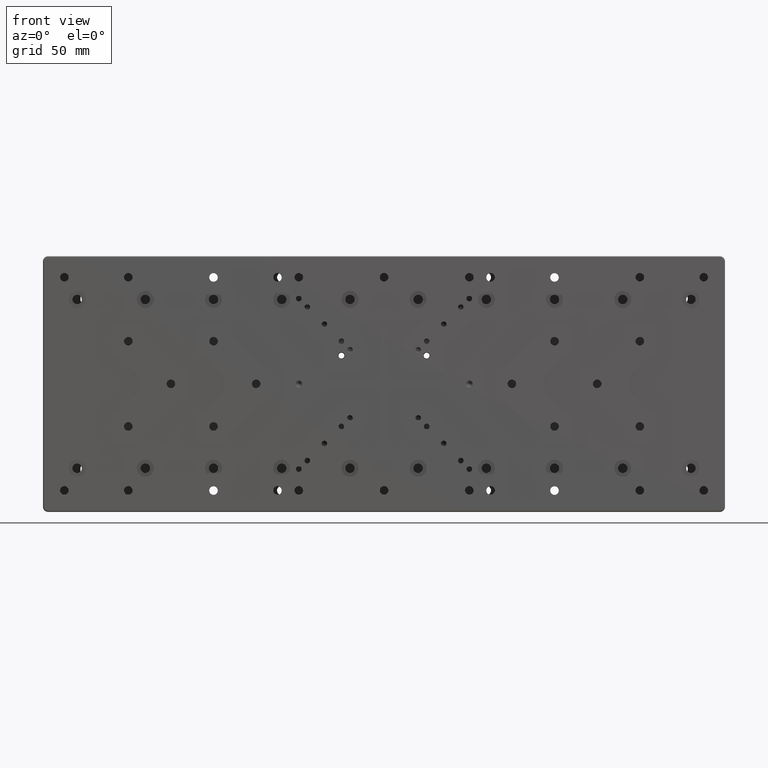
[diagram: clean part render]
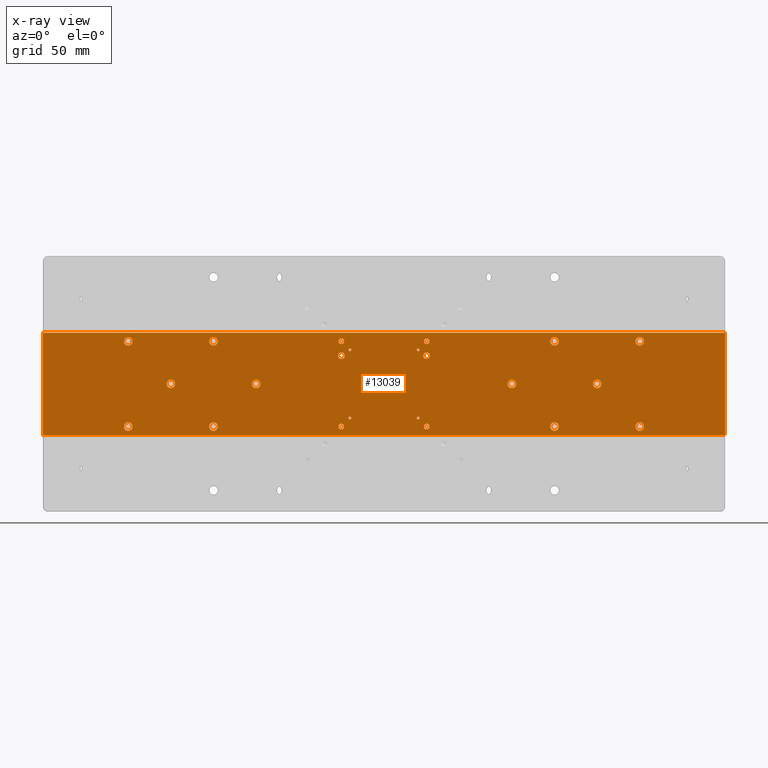
[diagram: x-ray — body ghosted, one internal face saturated and labeled with its STEP entity id]
A machine part, front view, then the same camera in x-ray: the body is ghosted and one INTERNAL B-rep face — a face not visible from any outside direction — is saturated and labeled: STEP entity #13039.
In plain terms, the highlighted planar face has unit normal (0, 1, 0).
Its self-contained STEP definition (entity closure, byte-faithful):
#221 = ORIENTED_EDGE ( 'NONE', *, *, #20202, .T. ) ;
#246 = ORIENTED_EDGE ( 'NONE', *, *, #7959, .T. ) ;
#374 = ORIENTED_EDGE ( 'NONE', *, *, #23454, .T. ) ;
#480 = EDGE_LOOP ( 'NONE', ( #21414 ) ) ;
#689 = DIRECTION ( 'NONE',  ( 0.000000000000000000, 0.000000000000000000, -1.000000000000000000 ) ) ;
#706 = CIRCLE ( 'NONE', #10416, 2.500000000000000000 ) ;
#783 = DIRECTION ( 'NONE',  ( 0.000000000000000000, 0.000000000000000000, -1.000000000000000000 ) ) ;
#962 = VECTOR ( 'NONE', #17445, 1000.000000000000000 ) ;
#1210 = AXIS2_PLACEMENT_3D ( 'NONE', #11706, #36356, #8868 ) ;
#1351 = AXIS2_PLACEMENT_3D ( 'NONE', #12718, #34724, #34539 ) ;
#1363 = DIRECTION ( 'NONE',  ( 0.000000000000000000, -1.000000000000000000, 0.000000000000000000 ) ) ;
#1451 = VERTEX_POINT ( 'NONE', #22871 ) ;
#1614 = AXIS2_PLACEMENT_3D ( 'NONE', #9863, #16319, #28648 ) ;
#1620 = EDGE_LOOP ( 'NONE', ( #374 ) ) ;
#1735 = CARTESIAN_POINT ( 'NONE',  ( -200.0000000000000000, -11.50000000000000000, 30.50000000000000000 ) ) ;
#1750 = DIRECTION ( 'NONE',  ( 0.000000000000000000, 0.000000000000000000, -1.000000000000000000 ) ) ;
#1841 = EDGE_LOOP ( 'NONE', ( #3533 ) ) ;
#2047 = DIRECTION ( 'NONE',  ( 0.000000000000000000, -0.000000000000000000, 1.000000000000000000 ) ) ;
#2216 = CARTESIAN_POINT ( 'NONE',  ( 25.00000000000000000, -11.50000000000000000, 23.35000000000000142 ) ) ;
#2603 = VERTEX_POINT ( 'NONE', #14944 ) ;
#2859 = ORIENTED_EDGE ( 'NONE', *, *, #9440, .F. ) ;
#2883 = CARTESIAN_POINT ( 'NONE',  ( 20.00000000000000000, -11.50000000000134825, -20.00000000000000000 ) ) ;
#2916 = ORIENTED_EDGE ( 'NONE', *, *, #18119, .T. ) ;
#2949 = ORIENTED_EDGE ( 'NONE', *, *, #26946, .T. ) ;
#3072 = DIRECTION ( 'NONE',  ( -0.000000000000000000, -1.000000000000000000, -0.000000000000000000 ) ) ;
#3113 = ORIENTED_EDGE ( 'NONE', *, *, #31116, .T. ) ;
#3127 = CARTESIAN_POINT ( 'NONE',  ( 199.5000000000000000, -11.50000000000000355, 30.00000000000000000 ) ) ;
#3358 = AXIS2_PLACEMENT_3D ( 'NONE', #35599, #23058, #35388 ) ;
#3468 = CARTESIAN_POINT ( 'NONE',  ( -200.0000000000000000, -11.50000000000000000, 30.00000000000000000 ) ) ;
#3510 = DIRECTION ( 'NONE',  ( 0.000000000000000000, -1.000000000000000000, 0.000000000000000000 ) ) ;
#3533 = ORIENTED_EDGE ( 'NONE', *, *, #25892, .T. ) ;
#3650 = VERTEX_POINT ( 'NONE', #34555 ) ;
#3839 = ORIENTED_EDGE ( 'NONE', *, *, #39452, .F. ) ;
#3885 = VERTEX_POINT ( 'NONE', #24901 ) ;
#4048 = VERTEX_POINT ( 'NONE', #34945 ) ;
#4194 = EDGE_CURVE ( 'NONE', #27199, #27199, #16015, .T. ) ;
#4478 = EDGE_CURVE ( 'NONE', #18089, #18089, #30893, .T. ) ;
#4690 = FACE_BOUND ( 'NONE', #11508, .T. ) ;
#4787 = DIRECTION ( 'NONE',  ( 0.000000000000000000, 0.000000000000000000, -1.000000000000000000 ) ) ;
#5082 = FACE_BOUND ( 'NONE', #37410, .T. ) ;
#5185 = DIRECTION ( 'NONE',  ( 0.000000000000000000, -1.000000000000000000, 0.000000000000000000 ) ) ;
#5337 = AXIS2_PLACEMENT_3D ( 'NONE', #34238, #21316, #689 ) ;
#5435 = EDGE_CURVE ( 'NONE', #12823, #12823, #14185, .T. ) ;
#5461 = VERTEX_POINT ( 'NONE', #2216 ) ;
#5499 = FACE_BOUND ( 'NONE', #480, .T. ) ;
#6018 = EDGE_LOOP ( 'NONE', ( #26358 ) ) ;
#6335 = CARTESIAN_POINT ( 'NONE',  ( -25.00000000000000000, -11.50000000000000000, -25.00000000000000000 ) ) ;
#6380 = EDGE_CURVE ( 'NONE', #22808, #13388, #13802, .T. ) ;
#6710 = LINE ( 'NONE', #3468, #19101 ) ;
#7378 = DIRECTION ( 'NONE',  ( 0.000000000000000000, 0.000000000000000000, -1.000000000000000000 ) ) ;
#7438 = DIRECTION ( 'NONE',  ( 0.000000000000000000, -1.000000000000000000, 0.000000000000000000 ) ) ;
#7600 = AXIS2_PLACEMENT_3D ( 'NONE', #23343, #16139, #783 ) ;
#7887 = VERTEX_POINT ( 'NONE', #13948 ) ;
#7894 = AXIS2_PLACEMENT_3D ( 'NONE', #37676, #25742, #7378 ) ;
#7959 = EDGE_CURVE ( 'NONE', #38055, #38055, #19496, .T. ) ;
#8053 = EDGE_CURVE ( 'NONE', #28790, #28790, #29845, .T. ) ;
#8126 = EDGE_LOOP ( 'NONE', ( #20110 ) ) ;
#8127 = FACE_BOUND ( 'NONE', #33000, .T. ) ;
#8539 = VERTEX_POINT ( 'NONE', #20848 ) ;
#8868 = DIRECTION ( 'NONE',  ( 0.000000000000000000, 0.000000000000000000, -1.000000000000000000 ) ) ;
#8903 = CIRCLE ( 'NONE', #7600, 2.499999999999998668 ) ;
#9317 = CARTESIAN_POINT ( 'NONE',  ( -20.00000000000000000, -11.49999999994367705, 19.18213974120817511 ) ) ;
#9440 = EDGE_CURVE ( 'NONE', #36388, #27113, #38878, .T. ) ;
#9705 = CARTESIAN_POINT ( 'NONE',  ( -100.0000000000000000, -11.50000000000000000, -27.50000000000000000 ) ) ;
#9711 = CARTESIAN_POINT ( 'NONE',  ( -75.00000000000000000, -11.50000000000000000, -2.500000000000000000 ) ) ;
#9733 = CARTESIAN_POINT ( 'NONE',  ( 199.5000000000000000, -11.50000000000000000, -30.00000000000000000 ) ) ;
#9739 = CARTESIAN_POINT ( 'NONE',  ( 200.0000000000000000, -11.50000000000000178, 30.50000000000000000 ) ) ;
#9845 = CIRCLE ( 'NONE', #22756, 2.499999999999998668 ) ;
#9863 = CARTESIAN_POINT ( 'NONE',  ( 20.00000000000000000, -11.50000000000134825, 20.00000000000000000 ) ) ;
#9954 = EDGE_LOOP ( 'NONE', ( #31409 ) ) ;
#10065 = VERTEX_POINT ( 'NONE', #15931 ) ;
#10208 = EDGE_CURVE ( 'NONE', #23708, #23708, #28626, .T. ) ;
#10247 = AXIS2_PLACEMENT_3D ( 'NONE', #20627, #27107, #39416 ) ;
#10416 = AXIS2_PLACEMENT_3D ( 'NONE', #23161, #7438, #1750 ) ;
#10518 = AXIS2_PLACEMENT_3D ( 'NONE', #32936, #11333, #36555 ) ;
#10533 = CARTESIAN_POINT ( 'NONE',  ( -25.00000000000000000, -11.50000000000000000, 16.57000000000000028 ) ) ;
#10570 = AXIS2_PLACEMENT_3D ( 'NONE', #20724, #5185, #17894 ) ;
#10608 = CARTESIAN_POINT ( 'NONE',  ( 75.00000000000000000, -11.50000000000000000, -2.500000000000000000 ) ) ;
#10777 = CIRCLE ( 'NONE', #30760, 0.8178602587918248901 ) ;
#11159 = FACE_BOUND ( 'NONE', #34376, .T. ) ;
#11308 = EDGE_LOOP ( 'NONE', ( #27346 ) ) ;
#11333 = DIRECTION ( 'NONE',  ( 0.000000000000000000, 1.000000000000000000, 0.000000000000000000 ) ) ;
#11347 = FACE_BOUND ( 'NONE', #39398, .T. ) ;
#11353 = EDGE_LOOP ( 'NONE', ( #37205 ) ) ;
#11411 = DIRECTION ( 'NONE',  ( 0.000000000000000000, -1.000000000000000000, 0.000000000000000000 ) ) ;
#11508 = EDGE_LOOP ( 'NONE', ( #35913 ) ) ;
#11535 = FACE_BOUND ( 'NONE', #11308, .T. ) ;
#11549 = EDGE_CURVE ( 'NONE', #24717, #24717, #31044, .T. ) ;
#11693 = AXIS2_PLACEMENT_3D ( 'NONE', #10533, #35166, #25663 ) ;
#11706 = CARTESIAN_POINT ( 'NONE',  ( -25.00000000000000000, -11.50000000000000000, 25.00000000000000000 ) ) ;
#11742 = FACE_BOUND ( 'NONE', #11353, .T. ) ;
#11985 = LINE ( 'NONE', #36616, #962 ) ;
#12204 = DIRECTION ( 'NONE',  ( 0.000000000000000000, 0.000000000000000000, -1.000000000000000000 ) ) ;
#12428 = EDGE_CURVE ( 'NONE', #3885, #3885, #30473, .T. ) ;
#12541 = EDGE_CURVE ( 'NONE', #21863, #21863, #25306, .T. ) ;
#12718 = CARTESIAN_POINT ( 'NONE',  ( 25.00000000000000000, -11.50000000000000000, -25.00000000000000000 ) ) ;
#12823 = VERTEX_POINT ( 'NONE', #31027 ) ;
#13039 = ADVANCED_FACE ( 'NONE', ( #11159, #39195, #5499, #39402, #14584, #23469, #32756, #38806, #26888, #11742, #14184, #11347, #20834, #4690, #8127, #35586, #26494, #20419, #5082, #11535, #24071, #17604, #23654 ), #17396, .T. ) ;
#13388 = VERTEX_POINT ( 'NONE', #1735 ) ;
#13708 = EDGE_LOOP ( 'NONE', ( #19170, #23832, #21421, #22788, #2859, #3839, #14105, #38371 ) ) ;
#13802 = LINE ( 'NONE', #32965, #16818 ) ;
#13948 = CARTESIAN_POINT ( 'NONE',  ( 20.00000000000000000, -11.50000000000134825, 19.18213974115133169 ) ) ;
#14105 = ORIENTED_EDGE ( 'NONE', *, *, #25251, .T. ) ;
#14184 = FACE_BOUND ( 'NONE', #23510, .T. ) ;
#14185 = CIRCLE ( 'NONE', #32886, 2.500000000000000000 ) ;
#14210 = CIRCLE ( 'NONE', #29685, 2.499999999999998668 ) ;
#14468 = DIRECTION ( 'NONE',  ( 0.000000000000000000, 0.000000000000000000, -1.000000000000000000 ) ) ;
#14483 = DIRECTION ( 'NONE',  ( 0.000000000000000000, 0.000000000000000000, -1.000000000000000000 ) ) ;
#14584 = FACE_BOUND ( 'NONE', #16493, .T. ) ;
#14775 = DIRECTION ( 'NONE',  ( 0.000000000000000000, 1.000000000000000000, 0.000000000000000000 ) ) ;
#14799 = EDGE_CURVE ( 'NONE', #1451, #1451, #34125, .T. ) ;
#14944 = CARTESIAN_POINT ( 'NONE',  ( -25.00000000000000000, -11.50000000000000000, 18.57000000000000384 ) ) ;
#15440 = CIRCLE ( 'NONE', #37997, 1.649999999999998579 ) ;
#15534 = CARTESIAN_POINT ( 'NONE',  ( 199.5000000000000000, -11.50000000000000000, -30.50000000000000000 ) ) ;
#15788 = VERTEX_POINT ( 'NONE', #9711 ) ;
#15830 = DIRECTION ( 'NONE',  ( 0.000000000000000000, 0.000000000000000000, -1.000000000000000000 ) ) ;
#15931 = CARTESIAN_POINT ( 'NONE',  ( 20.00000000000000000, -11.50000000000134825, -20.81786025884866831 ) ) ;
#16015 = CIRCLE ( 'NONE', #32802, 1.649999999999998579 ) ;
#16139 = DIRECTION ( 'NONE',  ( 0.000000000000000000, -1.000000000000000000, 0.000000000000000000 ) ) ;
#16185 = DIRECTION ( 'NONE',  ( 0.000000000000000000, -1.000000000000000000, 0.000000000000000000 ) ) ;
#16319 = DIRECTION ( 'NONE',  ( 0.000000000000000000, -1.000000000000000000, -5.256737805984233058E-16 ) ) ;
#16434 = DIRECTION ( 'NONE',  ( 0.000000000000000000, -1.000000000000000000, 0.000000000000000000 ) ) ;
#16493 = EDGE_LOOP ( 'NONE', ( #37359 ) ) ;
#16719 = DIRECTION ( 'NONE',  ( 0.000000000000000000, 0.000000000000000000, -1.000000000000000000 ) ) ;
#16818 = VECTOR ( 'NONE', #26120, 1000.000000000000000 ) ;
#16849 = AXIS2_PLACEMENT_3D ( 'NONE', #27984, #21893, #34021 ) ;
#17157 = ORIENTED_EDGE ( 'NONE', *, *, #17897, .T. ) ;
#17396 = PLANE ( 'NONE',  #36318 ) ;
#17445 = DIRECTION ( 'NONE',  ( 0.000000000000000000, -0.000000000000000000, 1.000000000000000000 ) ) ;
#17604 = FACE_BOUND ( 'NONE', #6018, .T. ) ;
#17758 = CARTESIAN_POINT ( 'NONE',  ( -150.0000000000000000, -11.50000000000000000, -27.50000000000000000 ) ) ;
#17894 = DIRECTION ( 'NONE',  ( 0.000000000000000000, 0.000000000000000000, -1.000000000000000000 ) ) ;
#17897 = EDGE_CURVE ( 'NONE', #37571, #37571, #8903, .T. ) ;
#18085 = AXIS2_PLACEMENT_3D ( 'NONE', #29053, #1363, #16719 ) ;
#18089 = VERTEX_POINT ( 'NONE', #30426 ) ;
#18119 = EDGE_CURVE ( 'NONE', #34548, #34548, #10777, .T. ) ;
#18161 = AXIS2_PLACEMENT_3D ( 'NONE', #2883, #27519, #33382 ) ;
#18212 = DIRECTION ( 'NONE',  ( 1.000000000000000000, 0.000000000000000000, -0.000000000000000000 ) ) ;
#18661 = CARTESIAN_POINT ( 'NONE',  ( -150.0000000000000000, -11.50000000000000000, 25.00000000000000000 ) ) ;
#19003 = EDGE_CURVE ( 'NONE', #38004, #27113, #6710, .T. ) ;
#19030 = CIRCLE ( 'NONE', #1614, 0.8178602588486683089 ) ;
#19076 = DIRECTION ( 'NONE',  ( 0.000000000000000000, -1.000000000000000000, 0.000000000000000000 ) ) ;
#19101 = VECTOR ( 'NONE', #18212, 1000.000000000000000 ) ;
#19170 = ORIENTED_EDGE ( 'NONE', *, *, #32981, .T. ) ;
#19403 = DIRECTION ( 'NONE',  ( 0.000000000000000000, 0.000000000000000000, -1.000000000000000000 ) ) ;
#19496 = CIRCLE ( 'NONE', #29206, 2.500000000000000000 ) ;
#19672 = EDGE_LOOP ( 'NONE', ( #26880 ) ) ;
#19902 = CARTESIAN_POINT ( 'NONE',  ( -200.0000000000000000, -11.50000000000000000, -30.00000000000000000 ) ) ;
#19974 = CIRCLE ( 'NONE', #11693, 2.000000000000001776 ) ;
#20023 = EDGE_LOOP ( 'NONE', ( #22089 ) ) ;
#20110 = ORIENTED_EDGE ( 'NONE', *, *, #30187, .T. ) ;
#20202 = EDGE_CURVE ( 'NONE', #4048, #4048, #14210, .T. ) ;
#20314 = ORIENTED_EDGE ( 'NONE', *, *, #33456, .T. ) ;
#20407 = CARTESIAN_POINT ( 'NONE',  ( -199.5000000000000000, -11.50000000000000000, 30.00000000000000000 ) ) ;
#20419 = FACE_BOUND ( 'NONE', #1620, .T. ) ;
#20627 = CARTESIAN_POINT ( 'NONE',  ( -125.0000000000000000, -11.50000000000000000, 0.000000000000000000 ) ) ;
#20680 = CIRCLE ( 'NONE', #18085, 2.499999999999998668 ) ;
#20724 = CARTESIAN_POINT ( 'NONE',  ( -199.5000000000000000, -11.50000000000000000, 30.50000000000000000 ) ) ;
#20834 = FACE_BOUND ( 'NONE', #9954, .T. ) ;
#20848 = CARTESIAN_POINT ( 'NONE',  ( -20.00000000000000000, -11.49999999994367705, -20.81786025879182489 ) ) ;
#21316 = DIRECTION ( 'NONE',  ( 0.000000000000000000, -1.000000000000000000, 0.000000000000000000 ) ) ;
#21414 = ORIENTED_EDGE ( 'NONE', *, *, #12541, .T. ) ;
#21421 = ORIENTED_EDGE ( 'NONE', *, *, #29423, .T. ) ;
#21462 = DIRECTION ( 'NONE',  ( 0.000000000000000000, 0.000000000000000000, 1.000000000000000000 ) ) ;
#21527 = VERTEX_POINT ( 'NONE', #31999 ) ;
#21863 = VERTEX_POINT ( 'NONE', #34187 ) ;
#21893 = DIRECTION ( 'NONE',  ( -0.000000000000000000, -1.000000000000000000, -0.000000000000000000 ) ) ;
#21977 = DIRECTION ( 'NONE',  ( 0.000000000000000000, 0.000000000000000000, -1.000000000000000000 ) ) ;
#22028 = CARTESIAN_POINT ( 'NONE',  ( 150.0000000000000000, -11.50000000000000000, -27.50000000000000000 ) ) ;
#22030 = AXIS2_PLACEMENT_3D ( 'NONE', #38883, #11411, #14468 ) ;
#22089 = ORIENTED_EDGE ( 'NONE', *, *, #4478, .T. ) ;
#22631 = CIRCLE ( 'NONE', #27151, 0.5000000000000004441 ) ;
#22756 = AXIS2_PLACEMENT_3D ( 'NONE', #29426, #25993, #4787 ) ;
#22788 = ORIENTED_EDGE ( 'NONE', *, *, #19003, .T. ) ;
#22808 = VERTEX_POINT ( 'NONE', #36128 ) ;
#22814 = CIRCLE ( 'NONE', #10570, 0.5000000000000004441 ) ;
#22871 = CARTESIAN_POINT ( 'NONE',  ( -25.00000000000000000, -11.50000000000000000, 23.35000000000000142 ) ) ;
#23058 = DIRECTION ( 'NONE',  ( 0.000000000000000000, -1.000000000000000000, -5.256737805919051454E-16 ) ) ;
#23161 = CARTESIAN_POINT ( 'NONE',  ( -75.00000000000000000, -11.50000000000000000, 0.000000000000000000 ) ) ;
#23343 = CARTESIAN_POINT ( 'NONE',  ( -100.0000000000000000, -11.50000000000000000, -25.00000000000000000 ) ) ;
#23360 = CIRCLE ( 'NONE', #3358, 0.8178602587918248901 ) ;
#23454 = EDGE_CURVE ( 'NONE', #8539, #8539, #23360, .T. ) ;
#23469 = FACE_BOUND ( 'NONE', #19672, .T. ) ;
#23510 = EDGE_LOOP ( 'NONE', ( #246 ) ) ;
#23654 = FACE_OUTER_BOUND ( 'NONE', #13708, .T. ) ;
#23708 = VERTEX_POINT ( 'NONE', #36242 ) ;
#23832 = ORIENTED_EDGE ( 'NONE', *, *, #6380, .T. ) ;
#24071 = FACE_BOUND ( 'NONE', #8126, .T. ) ;
#24717 = VERTEX_POINT ( 'NONE', #37036 ) ;
#24901 = CARTESIAN_POINT ( 'NONE',  ( 100.0000000000000000, -11.50000000000000000, -27.50000000000000000 ) ) ;
#25251 = EDGE_CURVE ( 'NONE', #21527, #25997, #22631, .T. ) ;
#25306 = CIRCLE ( 'NONE', #7894, 2.499999999999998668 ) ;
#25463 = EDGE_CURVE ( 'NONE', #15788, #15788, #706, .T. ) ;
#25663 = DIRECTION ( 'NONE',  ( 0.000000000000000000, 0.000000000000000000, 1.000000000000000000 ) ) ;
#25742 = DIRECTION ( 'NONE',  ( 0.000000000000000000, -1.000000000000000000, 0.000000000000000000 ) ) ;
#25774 = EDGE_LOOP ( 'NONE', ( #2949 ) ) ;
#25892 = EDGE_CURVE ( 'NONE', #37178, #37178, #36231, .T. ) ;
#25993 = DIRECTION ( 'NONE',  ( 0.000000000000000000, -1.000000000000000000, 0.000000000000000000 ) ) ;
#25997 = VERTEX_POINT ( 'NONE', #9733 ) ;
#26120 = DIRECTION ( 'NONE',  ( 0.000000000000000000, -0.000000000000000000, 1.000000000000000000 ) ) ;
#26291 = ORIENTED_EDGE ( 'NONE', *, *, #5435, .T. ) ;
#26358 = ORIENTED_EDGE ( 'NONE', *, *, #4194, .T. ) ;
#26494 = FACE_BOUND ( 'NONE', #35909, .T. ) ;
#26673 = VERTEX_POINT ( 'NONE', #17758 ) ;
#26794 = DIRECTION ( 'NONE',  ( 0.000000000000000000, -1.000000000000000000, -5.256737805919039621E-16 ) ) ;
#26880 = ORIENTED_EDGE ( 'NONE', *, *, #12428, .T. ) ;
#26888 = FACE_BOUND ( 'NONE', #20023, .T. ) ;
#26896 = EDGE_CURVE ( 'NONE', #25997, #30121, #36917, .T. ) ;
#26946 = EDGE_CURVE ( 'NONE', #3650, #3650, #9845, .T. ) ;
#27107 = DIRECTION ( 'NONE',  ( 0.000000000000000000, -1.000000000000000000, 0.000000000000000000 ) ) ;
#27113 = VERTEX_POINT ( 'NONE', #3127 ) ;
#27151 = AXIS2_PLACEMENT_3D ( 'NONE', #15534, #28664, #21977 ) ;
#27199 = VERTEX_POINT ( 'NONE', #39509 ) ;
#27346 = ORIENTED_EDGE ( 'NONE', *, *, #14799, .T. ) ;
#27519 = DIRECTION ( 'NONE',  ( 0.000000000000000000, -1.000000000000000000, -5.256737805984243905E-16 ) ) ;
#27598 = EDGE_LOOP ( 'NONE', ( #3113 ) ) ;
#27984 = CARTESIAN_POINT ( 'NONE',  ( -199.5000000000000000, -11.50000000000000355, -30.50000000000000000 ) ) ;
#28369 = ORIENTED_EDGE ( 'NONE', *, *, #29211, .T. ) ;
#28375 = DIRECTION ( 'NONE',  ( 0.000000000000000000, 0.000000000000000000, -1.000000000000000000 ) ) ;
#28626 = CIRCLE ( 'NONE', #36374, 2.000000000000001776 ) ;
#28648 = DIRECTION ( 'NONE',  ( 0.000000000000000000, 0.000000000000000000, -1.000000000000000000 ) ) ;
#28664 = DIRECTION ( 'NONE',  ( 0.000000000000000000, -1.000000000000000000, 0.000000000000000000 ) ) ;
#28720 = DIRECTION ( 'NONE',  ( 0.000000000000000000, -1.000000000000000000, 0.000000000000000000 ) ) ;
#28790 = VERTEX_POINT ( 'NONE', #38270 ) ;
#29053 = CARTESIAN_POINT ( 'NONE',  ( -150.0000000000000000, -11.50000000000000000, -25.00000000000000000 ) ) ;
#29156 = DIRECTION ( 'NONE',  ( 0.000000000000000000, 0.000000000000000000, -1.000000000000000000 ) ) ;
#29206 = AXIS2_PLACEMENT_3D ( 'NONE', #34377, #16185, #19403 ) ;
#29211 = EDGE_CURVE ( 'NONE', #7887, #7887, #19030, .T. ) ;
#29423 = EDGE_CURVE ( 'NONE', #13388, #38004, #22814, .T. ) ;
#29426 = CARTESIAN_POINT ( 'NONE',  ( 150.0000000000000000, -11.50000000000000000, 25.00000000000000000 ) ) ;
#29685 = AXIS2_PLACEMENT_3D ( 'NONE', #18661, #36852, #12204 ) ;
#29733 = CARTESIAN_POINT ( 'NONE',  ( -200.0000000000000000, -11.50000000000000000, -30.00000000000000000 ) ) ;
#29845 = CIRCLE ( 'NONE', #34363, 2.499999999999998668 ) ;
#30121 = VERTEX_POINT ( 'NONE', #34425 ) ;
#30187 = EDGE_CURVE ( 'NONE', #5461, #5461, #15440, .T. ) ;
#30322 = EDGE_LOOP ( 'NONE', ( #2916 ) ) ;
#30426 = CARTESIAN_POINT ( 'NONE',  ( -125.0000000000000000, -11.50000000000000000, -2.500000000000000000 ) ) ;
#30473 = CIRCLE ( 'NONE', #5337, 2.499999999999998668 ) ;
#30760 = AXIS2_PLACEMENT_3D ( 'NONE', #36865, #26794, #14483 ) ;
#30893 = CIRCLE ( 'NONE', #10247, 2.500000000000000000 ) ;
#31027 = CARTESIAN_POINT ( 'NONE',  ( 125.0000000000000000, -11.50000000000000000, -2.500000000000000000 ) ) ;
#31044 = CIRCLE ( 'NONE', #1351, 1.649999999999998579 ) ;
#31116 = EDGE_CURVE ( 'NONE', #26673, #26673, #20680, .T. ) ;
#31409 = ORIENTED_EDGE ( 'NONE', *, *, #31870, .T. ) ;
#31861 = DIRECTION ( 'NONE',  ( -1.000000000000000000, -0.000000000000000000, 0.000000000000000000 ) ) ;
#31870 = EDGE_CURVE ( 'NONE', #2603, #2603, #19974, .T. ) ;
#31984 = CARTESIAN_POINT ( 'NONE',  ( 25.00000000000000000, -11.50000000000000000, 25.00000000000000000 ) ) ;
#31999 = CARTESIAN_POINT ( 'NONE',  ( 200.0000000000000000, -11.50000000000000000, -30.50000000000000000 ) ) ;
#32756 = FACE_BOUND ( 'NONE', #25774, .T. ) ;
#32802 = AXIS2_PLACEMENT_3D ( 'NONE', #6335, #3510, #15830 ) ;
#32886 = AXIS2_PLACEMENT_3D ( 'NONE', #34031, #19076, #28375 ) ;
#32936 = CARTESIAN_POINT ( 'NONE',  ( 199.5000000000000000, -11.50000000000000355, 30.50000000000000000 ) ) ;
#32965 = CARTESIAN_POINT ( 'NONE',  ( -200.0000000000000000, -11.50000000000000000, 0.000000000000000000 ) ) ;
#32981 = EDGE_CURVE ( 'NONE', #30121, #22808, #37480, .T. ) ;
#33000 = EDGE_LOOP ( 'NONE', ( #39188 ) ) ;
#33382 = DIRECTION ( 'NONE',  ( 0.000000000000000000, 0.000000000000000000, -1.000000000000000000 ) ) ;
#33456 = EDGE_CURVE ( 'NONE', #10065, #10065, #36233, .T. ) ;
#34021 = DIRECTION ( 'NONE',  ( 0.000000000000000000, 0.000000000000000000, 1.000000000000000000 ) ) ;
#34031 = CARTESIAN_POINT ( 'NONE',  ( 125.0000000000000000, -11.50000000000000000, 0.000000000000000000 ) ) ;
#34125 = CIRCLE ( 'NONE', #1210, 1.649999999999998579 ) ;
#34187 = CARTESIAN_POINT ( 'NONE',  ( -100.0000000000000000, -11.50000000000000000, 22.50000000000000355 ) ) ;
#34238 = CARTESIAN_POINT ( 'NONE',  ( 100.0000000000000000, -11.50000000000000000, -25.00000000000000000 ) ) ;
#34355 = VECTOR ( 'NONE', #31861, 1000.000000000000000 ) ;
#34363 = AXIS2_PLACEMENT_3D ( 'NONE', #37976, #28720, #38390 ) ;
#34376 = EDGE_LOOP ( 'NONE', ( #221 ) ) ;
#34377 = CARTESIAN_POINT ( 'NONE',  ( 75.00000000000000000, -11.50000000000000000, 0.000000000000000000 ) ) ;
#34425 = CARTESIAN_POINT ( 'NONE',  ( -199.5000000000000000, -11.50000000000000355, -30.00000000000000000 ) ) ;
#34539 = DIRECTION ( 'NONE',  ( 0.000000000000000000, 0.000000000000000000, -1.000000000000000000 ) ) ;
#34548 = VERTEX_POINT ( 'NONE', #9317 ) ;
#34555 = CARTESIAN_POINT ( 'NONE',  ( 150.0000000000000000, -11.50000000000000000, 22.50000000000000355 ) ) ;
#34724 = DIRECTION ( 'NONE',  ( 0.000000000000000000, -1.000000000000000000, 0.000000000000000000 ) ) ;
#34945 = CARTESIAN_POINT ( 'NONE',  ( -150.0000000000000000, -11.50000000000000000, 22.50000000000000355 ) ) ;
#35166 = DIRECTION ( 'NONE',  ( -0.000000000000000000, -1.000000000000000000, -0.000000000000000000 ) ) ;
#35388 = DIRECTION ( 'NONE',  ( 0.000000000000000000, 0.000000000000000000, -1.000000000000000000 ) ) ;
#35586 = FACE_BOUND ( 'NONE', #30322, .T. ) ;
#35599 = CARTESIAN_POINT ( 'NONE',  ( -20.00000000000000000, -11.49999999994367705, -20.00000000000000000 ) ) ;
#35909 = EDGE_LOOP ( 'NONE', ( #28369 ) ) ;
#35913 = ORIENTED_EDGE ( 'NONE', *, *, #11549, .T. ) ;
#36128 = CARTESIAN_POINT ( 'NONE',  ( -200.0000000000000000, -11.50000000000000178, -30.50000000000000000 ) ) ;
#36231 = CIRCLE ( 'NONE', #22030, 2.499999999999998668 ) ;
#36233 = CIRCLE ( 'NONE', #18161, 0.8178602588486683089 ) ;
#36242 = CARTESIAN_POINT ( 'NONE',  ( 25.00000000000000000, -11.50000000000000000, 18.57000000000000384 ) ) ;
#36318 = AXIS2_PLACEMENT_3D ( 'NONE', #29733, #14775, #2047 ) ;
#36356 = DIRECTION ( 'NONE',  ( 0.000000000000000000, -1.000000000000000000, 0.000000000000000000 ) ) ;
#36374 = AXIS2_PLACEMENT_3D ( 'NONE', #36810, #3072, #21462 ) ;
#36388 = VERTEX_POINT ( 'NONE', #9739 ) ;
#36555 = DIRECTION ( 'NONE',  ( 0.000000000000000000, 0.000000000000000000, 1.000000000000000000 ) ) ;
#36616 = CARTESIAN_POINT ( 'NONE',  ( 200.0000000000000000, -11.50000000000000000, 0.000000000000000000 ) ) ;
#36810 = CARTESIAN_POINT ( 'NONE',  ( 25.00000000000000000, -11.50000000000000000, 16.57000000000000028 ) ) ;
#36852 = DIRECTION ( 'NONE',  ( 0.000000000000000000, -1.000000000000000000, 0.000000000000000000 ) ) ;
#36865 = CARTESIAN_POINT ( 'NONE',  ( -20.00000000000000000, -11.49999999994367705, 20.00000000000000000 ) ) ;
#36917 = LINE ( 'NONE', #19902, #34355 ) ;
#37036 = CARTESIAN_POINT ( 'NONE',  ( 25.00000000000000000, -11.50000000000000000, -26.64999999999999858 ) ) ;
#37178 = VERTEX_POINT ( 'NONE', #22028 ) ;
#37205 = ORIENTED_EDGE ( 'NONE', *, *, #25463, .T. ) ;
#37359 = ORIENTED_EDGE ( 'NONE', *, *, #8053, .T. ) ;
#37410 = EDGE_LOOP ( 'NONE', ( #20314 ) ) ;
#37480 = CIRCLE ( 'NONE', #16849, 0.5000000000000004441 ) ;
#37571 = VERTEX_POINT ( 'NONE', #9705 ) ;
#37676 = CARTESIAN_POINT ( 'NONE',  ( -100.0000000000000000, -11.50000000000000000, 25.00000000000000000 ) ) ;
#37976 = CARTESIAN_POINT ( 'NONE',  ( 100.0000000000000000, -11.50000000000000000, 25.00000000000000000 ) ) ;
#37997 = AXIS2_PLACEMENT_3D ( 'NONE', #31984, #16434, #29156 ) ;
#38004 = VERTEX_POINT ( 'NONE', #20407 ) ;
#38055 = VERTEX_POINT ( 'NONE', #10608 ) ;
#38270 = CARTESIAN_POINT ( 'NONE',  ( 100.0000000000000000, -11.50000000000000000, 22.50000000000000355 ) ) ;
#38371 = ORIENTED_EDGE ( 'NONE', *, *, #26896, .T. ) ;
#38390 = DIRECTION ( 'NONE',  ( 0.000000000000000000, 0.000000000000000000, -1.000000000000000000 ) ) ;
#38806 = FACE_BOUND ( 'NONE', #1841, .T. ) ;
#38860 = EDGE_LOOP ( 'NONE', ( #17157 ) ) ;
#38878 = CIRCLE ( 'NONE', #10518, 0.5000000000000004441 ) ;
#38883 = CARTESIAN_POINT ( 'NONE',  ( 150.0000000000000000, -11.50000000000000000, -25.00000000000000000 ) ) ;
#39188 = ORIENTED_EDGE ( 'NONE', *, *, #10208, .T. ) ;
#39195 = FACE_BOUND ( 'NONE', #27598, .T. ) ;
#39398 = EDGE_LOOP ( 'NONE', ( #26291 ) ) ;
#39402 = FACE_BOUND ( 'NONE', #38860, .T. ) ;
#39416 = DIRECTION ( 'NONE',  ( 0.000000000000000000, 0.000000000000000000, -1.000000000000000000 ) ) ;
#39452 = EDGE_CURVE ( 'NONE', #21527, #36388, #11985, .T. ) ;
#39509 = CARTESIAN_POINT ( 'NONE',  ( -25.00000000000000000, -11.50000000000000000, -26.64999999999999858 ) ) ;